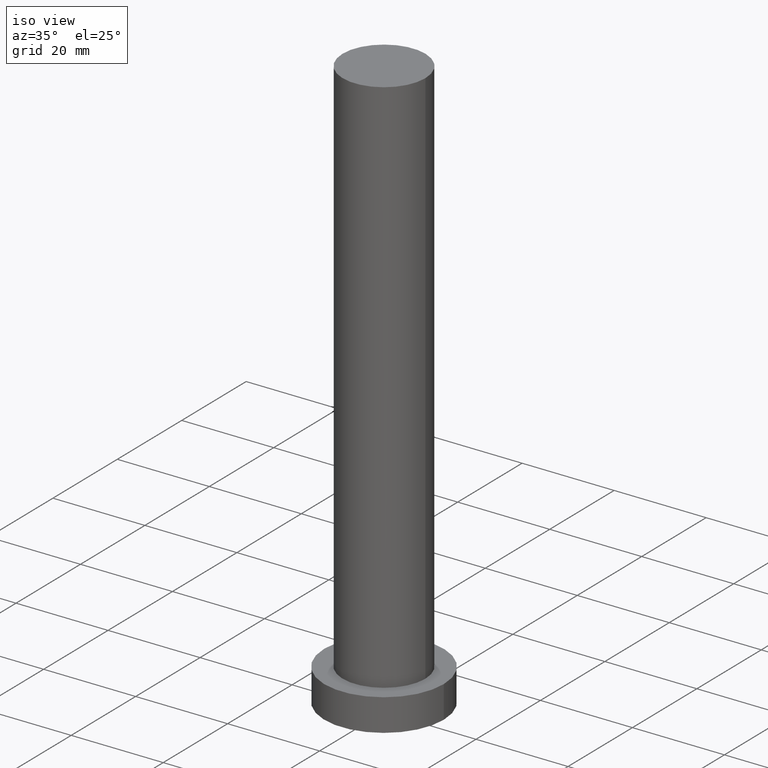
[diagram: clean part render]
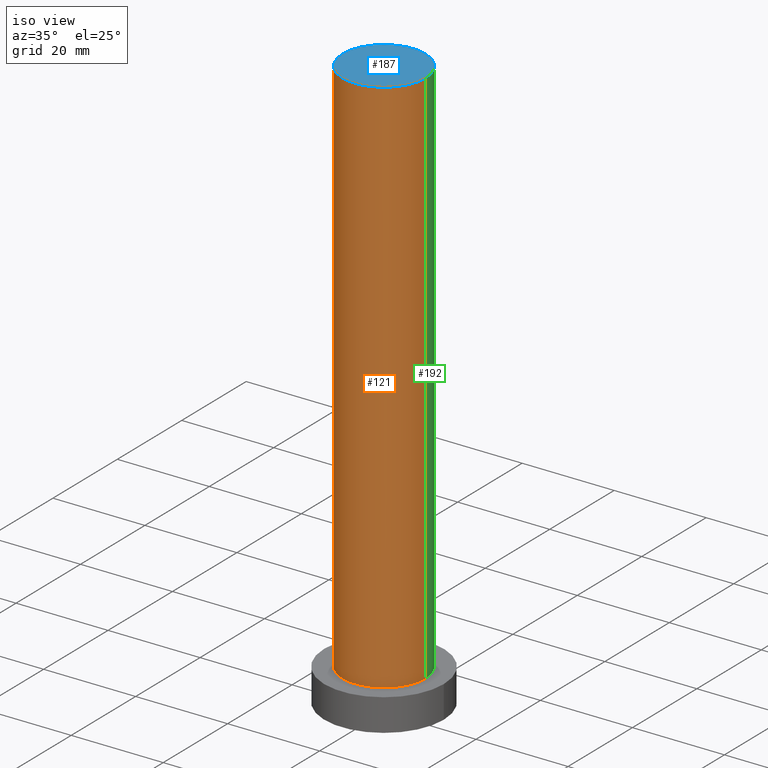
[diagram: same view with three faces highlighted in distinct colors, each labeled with its STEP entity id]
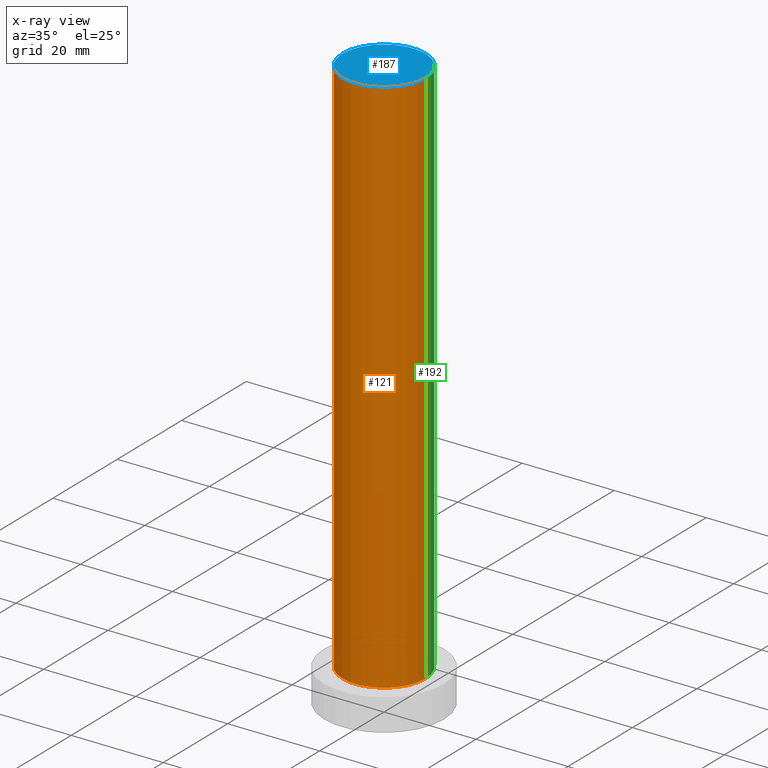
[diagram: x-ray of the same camera — body ghosted, the three highlighted faces saturated]
A machine part, iso view with three faces highlighted in distinct colors.
The next image is the same camera in x-ray (body ghosted, the three faces saturated) — at least one of them is partly hidden behind the body in this view.
Their STEP definitions:

[orange] entity #121 — the highlighted cylindrical surface (partial cylindrical patch) has radius 9 mm, axis along (-0, -0, -1).
#3 = CARTESIAN_POINT ( 'NONE',  ( 0.000000000000000000, 0.000000000000000000, 125.0000000000000000 ) ) ;
#5 = DIRECTION ( 'NONE',  ( 0.000000000000000000, 0.000000000000000000, 1.000000000000000000 ) ) ;
#6 = CIRCLE ( 'NONE', #132, 9.000000000000000000 ) ;
#41 = CARTESIAN_POINT ( 'NONE',  ( 9.000000000000000000, 1.102182119232617714E-15, 125.0000000000000000 ) ) ;
#46 = EDGE_CURVE ( 'NONE', #184, #169, #133, .T. ) ;
#47 = VECTOR ( 'NONE', #214, 1000.000000000000000 ) ;
#52 = LINE ( 'NONE', #141, #118 ) ;
#55 = CYLINDRICAL_SURFACE ( 'NONE', #97, 9.000000000000000000 ) ;
#56 = DIRECTION ( 'NONE',  ( -1.000000000000000000, 0.000000000000000000, 0.000000000000000000 ) ) ;
#65 = ORIENTED_EDGE ( 'NONE', *, *, #46, .F. ) ;
#73 = DIRECTION ( 'NONE',  ( 1.000000000000000000, 0.000000000000000000, 0.000000000000000000 ) ) ;
#92 = ORIENTED_EDGE ( 'NONE', *, *, #207, .T. ) ;
#97 = AXIS2_PLACEMENT_3D ( 'NONE', #3, #158, #56 ) ;
#102 = CARTESIAN_POINT ( 'NONE',  ( -9.000000000000000000, 0.000000000000000000, 125.0000000000000000 ) ) ;
#113 = VERTEX_POINT ( 'NONE', #119 ) ;
#116 = CARTESIAN_POINT ( 'NONE',  ( 0.000000000000000000, 0.000000000000000000, 125.0000000000000000 ) ) ;
#118 = VECTOR ( 'NONE', #212, 1000.000000000000000 ) ;
#119 = CARTESIAN_POINT ( 'NONE',  ( -9.000000000000000000, 0.000000000000000000, 7.000000000000000000 ) ) ;
#121 = ADVANCED_FACE ( 'NONE', ( #157 ), #55, .T. ) ;
#126 = EDGE_CURVE ( 'NONE', #169, #248, #52, .T. ) ;
#131 = ORIENTED_EDGE ( 'NONE', *, *, #255, .T. ) ;
#132 = AXIS2_PLACEMENT_3D ( 'NONE', #254, #153, #73 ) ;
#133 = CIRCLE ( 'NONE', #199, 9.000000000000000000 ) ;
#140 = LINE ( 'NONE', #102, #47 ) ;
#141 = CARTESIAN_POINT ( 'NONE',  ( 9.000000000000000000, 1.102182119232617714E-15, 125.0000000000000000 ) ) ;
#153 = DIRECTION ( 'NONE',  ( 0.000000000000000000, 0.000000000000000000, 1.000000000000000000 ) ) ;
#157 = FACE_OUTER_BOUND ( 'NONE', #220, .T. ) ;
#158 = DIRECTION ( 'NONE',  ( -0.000000000000000000, -0.000000000000000000, -1.000000000000000000 ) ) ;
#167 = ORIENTED_EDGE ( 'NONE', *, *, #126, .F. ) ;
#169 = VERTEX_POINT ( 'NONE', #41 ) ;
#177 = CARTESIAN_POINT ( 'NONE',  ( -9.000000000000000000, 0.000000000000000000, 125.0000000000000000 ) ) ;
#184 = VERTEX_POINT ( 'NONE', #177 ) ;
#191 = DIRECTION ( 'NONE',  ( 1.000000000000000000, 0.000000000000000000, 0.000000000000000000 ) ) ;
#199 = AXIS2_PLACEMENT_3D ( 'NONE', #116, #5, #191 ) ;
#207 = EDGE_CURVE ( 'NONE', #113, #248, #6, .T. ) ;
#212 = DIRECTION ( 'NONE',  ( -0.000000000000000000, -0.000000000000000000, -1.000000000000000000 ) ) ;
#214 = DIRECTION ( 'NONE',  ( -0.000000000000000000, -0.000000000000000000, -1.000000000000000000 ) ) ;
#220 = EDGE_LOOP ( 'NONE', ( #167, #65, #131, #92 ) ) ;
#234 = CARTESIAN_POINT ( 'NONE',  ( 9.000000000000000000, 1.102182119232617714E-15, 7.000000000000000000 ) ) ;
#248 = VERTEX_POINT ( 'NONE', #234 ) ;
#254 = CARTESIAN_POINT ( 'NONE',  ( 0.000000000000000000, 0.000000000000000000, 7.000000000000000000 ) ) ;
#255 = EDGE_CURVE ( 'NONE', #184, #113, #140, .T. ) ;

[blue] entity #187 — the highlighted planar face has unit normal (0, 0, 1).
#5 = DIRECTION ( 'NONE',  ( 0.000000000000000000, 0.000000000000000000, 1.000000000000000000 ) ) ;
#9 = ORIENTED_EDGE ( 'NONE', *, *, #150, .T. ) ;
#24 = CARTESIAN_POINT ( 'NONE',  ( 0.000000000000000000, 0.000000000000000000, 125.0000000000000000 ) ) ;
#41 = CARTESIAN_POINT ( 'NONE',  ( 9.000000000000000000, 1.102182119232617714E-15, 125.0000000000000000 ) ) ;
#46 = EDGE_CURVE ( 'NONE', #184, #169, #133, .T. ) ;
#59 = DIRECTION ( 'NONE',  ( 1.000000000000000000, 0.000000000000000000, 0.000000000000000000 ) ) ;
#85 = PLANE ( 'NONE',  #188 ) ;
#88 = AXIS2_PLACEMENT_3D ( 'NONE', #24, #200, #59 ) ;
#105 = FACE_OUTER_BOUND ( 'NONE', #204, .T. ) ;
#116 = CARTESIAN_POINT ( 'NONE',  ( 0.000000000000000000, 0.000000000000000000, 125.0000000000000000 ) ) ;
#133 = CIRCLE ( 'NONE', #199, 9.000000000000000000 ) ;
#150 = EDGE_CURVE ( 'NONE', #169, #184, #224, .T. ) ;
#161 = CARTESIAN_POINT ( 'NONE',  ( 0.000000000000000000, 0.000000000000000000, 125.0000000000000000 ) ) ;
#169 = VERTEX_POINT ( 'NONE', #41 ) ;
#177 = CARTESIAN_POINT ( 'NONE',  ( -9.000000000000000000, 0.000000000000000000, 125.0000000000000000 ) ) ;
#184 = VERTEX_POINT ( 'NONE', #177 ) ;
#187 = ADVANCED_FACE ( 'NONE', ( #105 ), #85, .T. ) ;
#188 = AXIS2_PLACEMENT_3D ( 'NONE', #161, #218, #239 ) ;
#191 = DIRECTION ( 'NONE',  ( 1.000000000000000000, 0.000000000000000000, 0.000000000000000000 ) ) ;
#199 = AXIS2_PLACEMENT_3D ( 'NONE', #116, #5, #191 ) ;
#200 = DIRECTION ( 'NONE',  ( 0.000000000000000000, 0.000000000000000000, 1.000000000000000000 ) ) ;
#204 = EDGE_LOOP ( 'NONE', ( #243, #9 ) ) ;
#218 = DIRECTION ( 'NONE',  ( 0.000000000000000000, 0.000000000000000000, 1.000000000000000000 ) ) ;
#224 = CIRCLE ( 'NONE', #88, 9.000000000000000000 ) ;
#239 = DIRECTION ( 'NONE',  ( 1.000000000000000000, 0.000000000000000000, -0.000000000000000000 ) ) ;
#243 = ORIENTED_EDGE ( 'NONE', *, *, #46, .T. ) ;

[green] entity #192 — the highlighted cylindrical surface (partial cylindrical patch) has radius 9 mm, axis along (-0, -0, -1).
#24 = CARTESIAN_POINT ( 'NONE',  ( 0.000000000000000000, 0.000000000000000000, 125.0000000000000000 ) ) ;
#27 = ORIENTED_EDGE ( 'NONE', *, *, #150, .F. ) ;
#30 = ORIENTED_EDGE ( 'NONE', *, *, #83, .T. ) ;
#41 = CARTESIAN_POINT ( 'NONE',  ( 9.000000000000000000, 1.102182119232617714E-15, 125.0000000000000000 ) ) ;
#43 = ORIENTED_EDGE ( 'NONE', *, *, #255, .F. ) ;
#47 = VECTOR ( 'NONE', #214, 1000.000000000000000 ) ;
#49 = DIRECTION ( 'NONE',  ( -0.000000000000000000, -0.000000000000000000, -1.000000000000000000 ) ) ;
#52 = LINE ( 'NONE', #141, #118 ) ;
#59 = DIRECTION ( 'NONE',  ( 1.000000000000000000, 0.000000000000000000, 0.000000000000000000 ) ) ;
#61 = EDGE_LOOP ( 'NONE', ( #27, #90, #30, #43 ) ) ;
#69 = CYLINDRICAL_SURFACE ( 'NONE', #79, 9.000000000000000000 ) ;
#79 = AXIS2_PLACEMENT_3D ( 'NONE', #137, #49, #135 ) ;
#83 = EDGE_CURVE ( 'NONE', #248, #113, #89, .T. ) ;
#88 = AXIS2_PLACEMENT_3D ( 'NONE', #24, #200, #59 ) ;
#89 = CIRCLE ( 'NONE', #185, 9.000000000000000000 ) ;
#90 = ORIENTED_EDGE ( 'NONE', *, *, #126, .T. ) ;
#102 = CARTESIAN_POINT ( 'NONE',  ( -9.000000000000000000, 0.000000000000000000, 125.0000000000000000 ) ) ;
#104 = DIRECTION ( 'NONE',  ( 1.000000000000000000, 0.000000000000000000, 0.000000000000000000 ) ) ;
#113 = VERTEX_POINT ( 'NONE', #119 ) ;
#118 = VECTOR ( 'NONE', #212, 1000.000000000000000 ) ;
#119 = CARTESIAN_POINT ( 'NONE',  ( -9.000000000000000000, 0.000000000000000000, 7.000000000000000000 ) ) ;
#126 = EDGE_CURVE ( 'NONE', #169, #248, #52, .T. ) ;
#135 = DIRECTION ( 'NONE',  ( -1.000000000000000000, 0.000000000000000000, 0.000000000000000000 ) ) ;
#137 = CARTESIAN_POINT ( 'NONE',  ( 0.000000000000000000, 0.000000000000000000, 125.0000000000000000 ) ) ;
#140 = LINE ( 'NONE', #102, #47 ) ;
#141 = CARTESIAN_POINT ( 'NONE',  ( 9.000000000000000000, 1.102182119232617714E-15, 125.0000000000000000 ) ) ;
#150 = EDGE_CURVE ( 'NONE', #169, #184, #224, .T. ) ;
#160 = CARTESIAN_POINT ( 'NONE',  ( 0.000000000000000000, 0.000000000000000000, 7.000000000000000000 ) ) ;
#169 = VERTEX_POINT ( 'NONE', #41 ) ;
#177 = CARTESIAN_POINT ( 'NONE',  ( -9.000000000000000000, 0.000000000000000000, 125.0000000000000000 ) ) ;
#184 = VERTEX_POINT ( 'NONE', #177 ) ;
#185 = AXIS2_PLACEMENT_3D ( 'NONE', #160, #238, #104 ) ;
#192 = ADVANCED_FACE ( 'NONE', ( #253 ), #69, .T. ) ;
#200 = DIRECTION ( 'NONE',  ( 0.000000000000000000, 0.000000000000000000, 1.000000000000000000 ) ) ;
#212 = DIRECTION ( 'NONE',  ( -0.000000000000000000, -0.000000000000000000, -1.000000000000000000 ) ) ;
#214 = DIRECTION ( 'NONE',  ( -0.000000000000000000, -0.000000000000000000, -1.000000000000000000 ) ) ;
#224 = CIRCLE ( 'NONE', #88, 9.000000000000000000 ) ;
#234 = CARTESIAN_POINT ( 'NONE',  ( 9.000000000000000000, 1.102182119232617714E-15, 7.000000000000000000 ) ) ;
#238 = DIRECTION ( 'NONE',  ( 0.000000000000000000, 0.000000000000000000, 1.000000000000000000 ) ) ;
#248 = VERTEX_POINT ( 'NONE', #234 ) ;
#253 = FACE_OUTER_BOUND ( 'NONE', #61, .T. ) ;
#255 = EDGE_CURVE ( 'NONE', #184, #113, #140, .T. ) ;